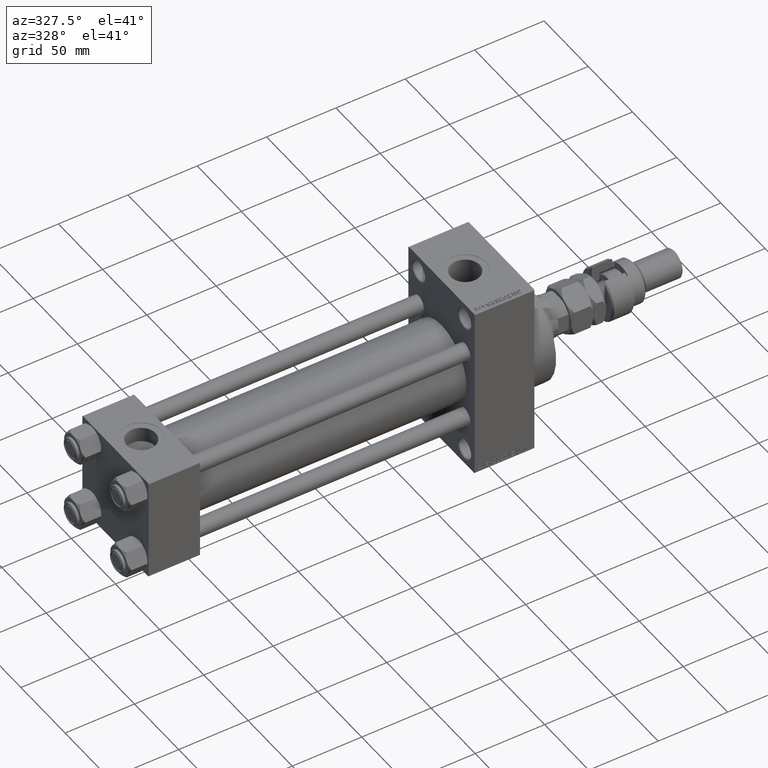
[diagram: clean part render]
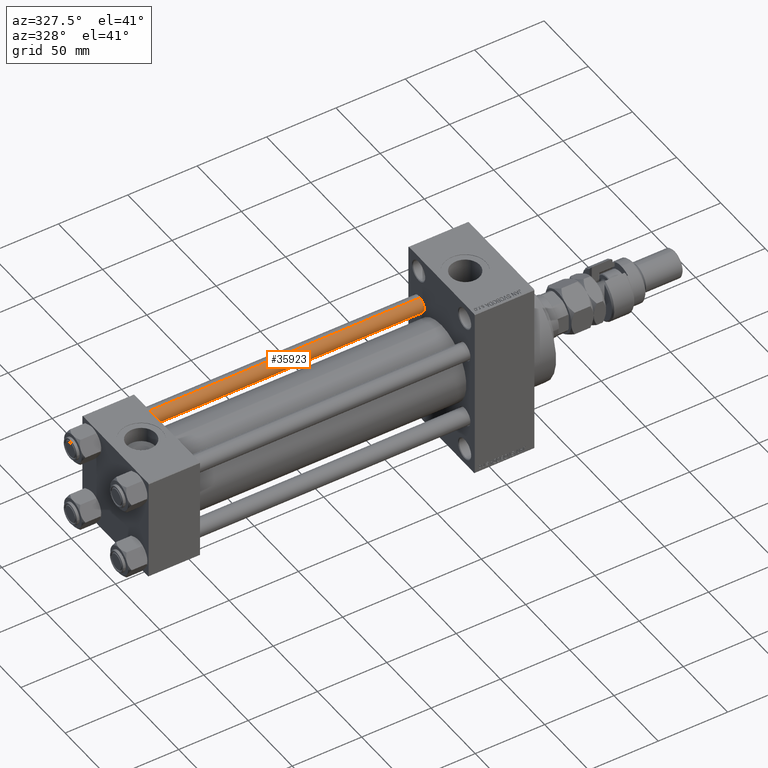
[diagram: same view with one face highlighted and labeled with its STEP entity id]
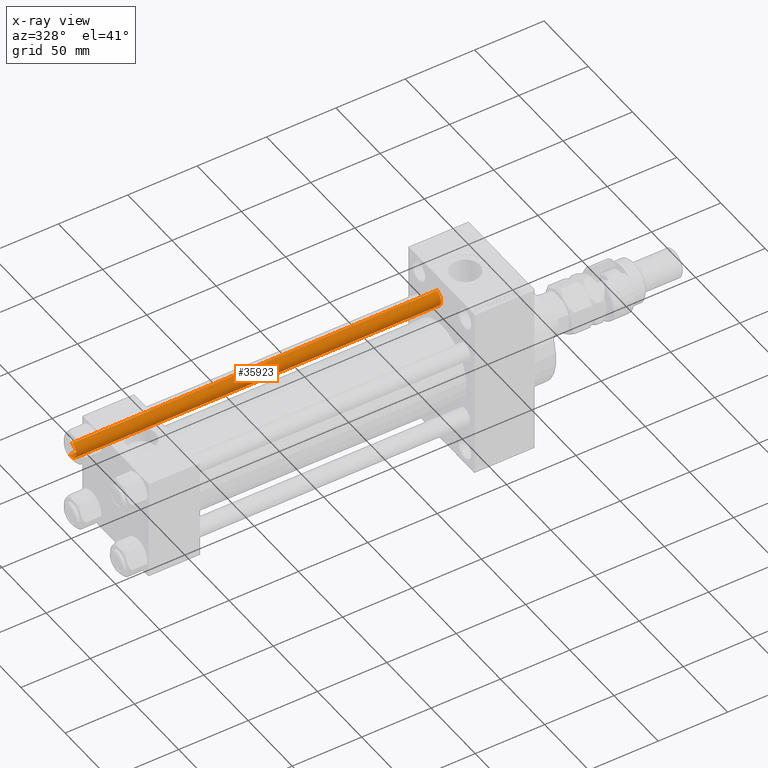
[diagram: x-ray of the same camera — body ghosted, the highlighted face saturated]
A machine part, auxiliary view. The second image highlights one B-rep face of the part: STEP entity #35923.
The next image is the same camera in x-ray: the body ghosted, the highlighted face saturated — about 0% of this face is hidden behind the body in this view.
In plain terms, the highlighted cylindrical surface (edge-blend (fillet) strip) has radius 6 mm, axis along (-1, -0, 0).
Its self-contained STEP definition (entity closure, byte-faithful):
#903 = ORIENTED_EDGE ( 'NONE', *, *, #15905, .F. ) ;
#1155 = CARTESIAN_POINT ( 'NONE',  ( 6.000000000000000888, 7.347880794884120722E-16, 264.0000000000000000 ) ) ;
#2860 = CARTESIAN_POINT ( 'NONE',  ( -6.000000000000000888, 0.000000000000000000, 264.0000000000000000 ) ) ;
#3414 = ORIENTED_EDGE ( 'NONE', *, *, #7392, .T. ) ;
#4193 = AXIS2_PLACEMENT_3D ( 'NONE', #49637, #41007, #14819 ) ;
#4221 = DIRECTION ( 'NONE',  ( 1.000000000000000000, 0.000000000000000000, 0.000000000000000000 ) ) ;
#4610 = VERTEX_POINT ( 'NONE', #49364 ) ;
#6269 = CARTESIAN_POINT ( 'NONE',  ( -6.000000000000000888, 0.000000000000000000, 0.5000000000000559552 ) ) ;
#6270 = AXIS2_PLACEMENT_3D ( 'NONE', #25100, #44660, #26630 ) ;
#7392 = EDGE_CURVE ( 'NONE', #42417, #4610, #46524, .T. ) ;
#9283 = DIRECTION ( 'NONE',  ( -0.000000000000000000, -0.000000000000000000, -1.000000000000000000 ) ) ;
#14819 = DIRECTION ( 'NONE',  ( 1.000000000000000000, 0.000000000000000000, 0.000000000000000000 ) ) ;
#15399 = DIRECTION ( 'NONE',  ( -0.000000000000000000, -0.000000000000000000, 1.000000000000000000 ) ) ;
#15529 = CIRCLE ( 'NONE', #4193, 6.000000000000000888 ) ;
#15905 = EDGE_CURVE ( 'NONE', #42222, #4610, #27825, .T. ) ;
#21546 = FACE_OUTER_BOUND ( 'NONE', #23337, .T. ) ;
#22185 = AXIS2_PLACEMENT_3D ( 'NONE', #42829, #15399, #4221 ) ;
#23337 = EDGE_LOOP ( 'NONE', ( #903, #47341, #27267, #3414 ) ) ;
#25100 = CARTESIAN_POINT ( 'NONE',  ( 0.000000000000000000, 0.000000000000000000, 264.0000000000000000 ) ) ;
#25241 = VECTOR ( 'NONE', #34085, 1000.000000000000000 ) ;
#26463 = VECTOR ( 'NONE', #9283, 1000.000000000000000 ) ;
#26630 = DIRECTION ( 'NONE',  ( -1.000000000000000000, 0.000000000000000000, 0.000000000000000000 ) ) ;
#27267 = ORIENTED_EDGE ( 'NONE', *, *, #46943, .T. ) ;
#27825 = LINE ( 'NONE', #1155, #26463 ) ;
#34085 = DIRECTION ( 'NONE',  ( -0.000000000000000000, -0.000000000000000000, -1.000000000000000000 ) ) ;
#35923 = ADVANCED_FACE ( 'NONE', ( #21546 ), #48241, .T. ) ;
#36612 = CARTESIAN_POINT ( 'NONE',  ( -6.000000000000000888, 0.000000000000000000, 263.5000000000000568 ) ) ;
#41007 = DIRECTION ( 'NONE',  ( 0.000000000000000000, 0.000000000000000000, -1.000000000000000000 ) ) ;
#42222 = VERTEX_POINT ( 'NONE', #43610 ) ;
#42417 = VERTEX_POINT ( 'NONE', #6269 ) ;
#42829 = CARTESIAN_POINT ( 'NONE',  ( 0.000000000000000000, 0.000000000000000000, 0.5000000000000559552 ) ) ;
#43610 = CARTESIAN_POINT ( 'NONE',  ( 6.000000000000000888, 7.347880794884120722E-16, 263.5000000000000568 ) ) ;
#44660 = DIRECTION ( 'NONE',  ( -0.000000000000000000, -0.000000000000000000, -1.000000000000000000 ) ) ;
#45020 = EDGE_CURVE ( 'NONE', #42222, #49130, #15529, .T. ) ;
#46524 = CIRCLE ( 'NONE', #22185, 6.000000000000000888 ) ;
#46943 = EDGE_CURVE ( 'NONE', #49130, #42417, #48834, .T. ) ;
#47341 = ORIENTED_EDGE ( 'NONE', *, *, #45020, .T. ) ;
#48241 = CYLINDRICAL_SURFACE ( 'NONE', #6270, 6.000000000000000888 ) ;
#48834 = LINE ( 'NONE', #2860, #25241 ) ;
#49130 = VERTEX_POINT ( 'NONE', #36612 ) ;
#49364 = CARTESIAN_POINT ( 'NONE',  ( 6.000000000000000888, 7.347880794884120722E-16, 0.5000000000000559552 ) ) ;
#49637 = CARTESIAN_POINT ( 'NONE',  ( 0.000000000000000000, 0.000000000000000000, 263.5000000000000568 ) ) ;